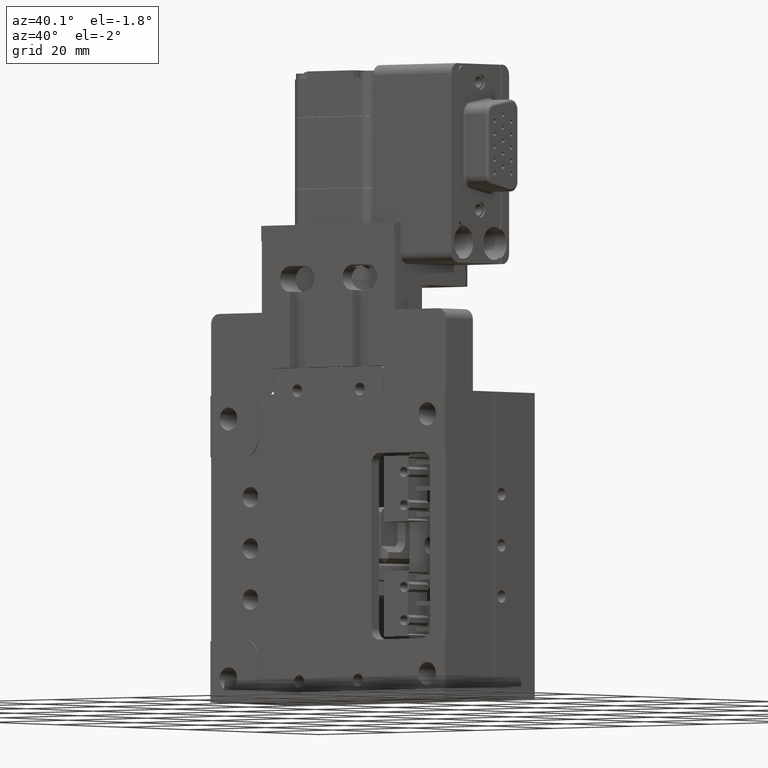
[diagram: clean part render]
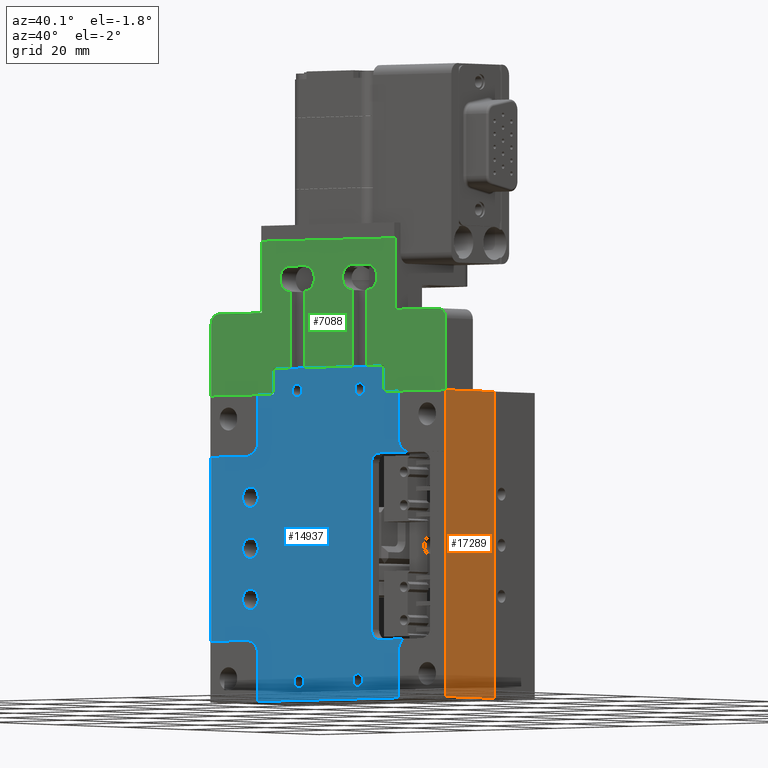
[diagram: same view with three faces highlighted in distinct colors, each labeled with its STEP entity id]
A machine part, auxiliary view with three faces highlighted in distinct colors.
Their STEP definitions:

[orange] entity #17289 — the highlighted planar face has unit normal (1, 0, 0).
#98 = CARTESIAN_POINT ( 'NONE',  ( 27.40828040119247400, -13.09818754598603800, 32.50000000000000000 ) ) ;
#265 = VECTOR ( 'NONE', #16069, 1000.000000000000000 ) ;
#492 = DIRECTION ( 'NONE',  ( 0.0000000000000000000, 0.0000000000000000000, -1.000000000000000000 ) ) ;
#634 = CARTESIAN_POINT ( 'NONE',  ( 27.40828040119247400, -13.09818754598603800, 32.50000000000000000 ) ) ;
#853 = LINE ( 'NONE', #7595, #15488 ) ;
#855 = EDGE_CURVE ( 'NONE', #20815, #10977, #18525, .T. ) ;
#867 = CARTESIAN_POINT ( 'NONE',  ( 27.40828040119247400, 4.072375202491112000, 80.50000000000000000 ) ) ;
#1073 = CARTESIAN_POINT ( 'NONE',  ( 27.40828040119247400, 1.701812454013962300, 92.50000000000000000 ) ) ;
#1280 = AXIS2_PLACEMENT_3D ( 'NONE', #2213, #2134, #3902 ) ;
#1369 = EDGE_CURVE ( 'NONE', #8387, #6875, #7603, .T. ) ;
#1386 = VERTEX_POINT ( 'NONE', #20185 ) ;
#2021 = ORIENTED_EDGE ( 'NONE', *, *, #1369, .F. ) ;
#2134 = DIRECTION ( 'NONE',  ( 1.000000000000000000, 0.0000000000000000000, 0.0000000000000000000 ) ) ;
#2213 = CARTESIAN_POINT ( 'NONE',  ( 27.40828040119247400, -13.09818754598603800, 32.50000000000000000 ) ) ;
#2831 = ORIENTED_EDGE ( 'NONE', *, *, #3958, .F. ) ;
#3101 = VECTOR ( 'NONE', #11660, 1000.000000000000000 ) ;
#3902 = DIRECTION ( 'NONE',  ( 0.0000000000000000000, 0.0000000000000000000, -1.000000000000000000 ) ) ;
#3928 = LINE ( 'NONE', #8036, #3101 ) ;
#3958 = EDGE_CURVE ( 'NONE', #15630, #15066, #853, .T. ) ;
#4899 = ORIENTED_EDGE ( 'NONE', *, *, #855, .F. ) ;
#4976 = CARTESIAN_POINT ( 'NONE',  ( 27.40828040119247400, -13.09818754598602900, 44.50000000000000000 ) ) ;
#5874 = VECTOR ( 'NONE', #20167, 1000.000000000000000 ) ;
#5950 = DIRECTION ( 'NONE',  ( 0.0000000000000000000, -1.000000000000000000, 0.0000000000000000000 ) ) ;
#6217 = DIRECTION ( 'NONE',  ( 0.0000000000000000000, -1.000000000000000000, 0.0000000000000000000 ) ) ;
#6438 = CARTESIAN_POINT ( 'NONE',  ( 27.40828040119247400, -13.09818754598602900, 80.50000000000000000 ) ) ;
#6875 = VERTEX_POINT ( 'NONE', #12829 ) ;
#6903 = ORIENTED_EDGE ( 'NONE', *, *, #18094, .T. ) ;
#6975 = LINE ( 'NONE', #16599, #5874 ) ;
#7595 = CARTESIAN_POINT ( 'NONE',  ( 27.40828040119247400, 1.701812454013962300, 92.50000000000000000 ) ) ;
#7603 = LINE ( 'NONE', #11263, #14519 ) ;
#8036 = CARTESIAN_POINT ( 'NONE',  ( 27.40828040119247400, -13.09818754598603800, 32.50000000000000000 ) ) ;
#8179 = LINE ( 'NONE', #22087, #18168 ) ;
#8200 = ORIENTED_EDGE ( 'NONE', *, *, #15037, .F. ) ;
#8387 = VERTEX_POINT ( 'NONE', #6438 ) ;
#9272 = EDGE_CURVE ( 'NONE', #6875, #15630, #6975, .T. ) ;
#10378 = ORIENTED_EDGE ( 'NONE', *, *, #16028, .T. ) ;
#10977 = VERTEX_POINT ( 'NONE', #4976 ) ;
#11263 = CARTESIAN_POINT ( 'NONE',  ( 27.40828040119247400, -13.09818754598603800, 32.50000000000000000 ) ) ;
#11350 = VECTOR ( 'NONE', #18896, 1000.000000000000000 ) ;
#11484 = DIRECTION ( 'NONE',  ( 0.0000000000000000000, 0.0000000000000000000, 1.000000000000000000 ) ) ;
#11527 = VERTEX_POINT ( 'NONE', #21136 ) ;
#11660 = DIRECTION ( 'NONE',  ( 0.0000000000000000000, 1.000000000000000000, 0.0000000000000000000 ) ) ;
#11718 = FACE_OUTER_BOUND ( 'NONE', #14883, .T. ) ;
#11832 = CARTESIAN_POINT ( 'NONE',  ( 27.40828040119247400, -12.89818754598603000, 37.50000000000000000 ) ) ;
#12714 = LINE ( 'NONE', #11832, #11350 ) ;
#12829 = CARTESIAN_POINT ( 'NONE',  ( 27.40828040119247400, -13.09818754598603800, 92.50000000000000000 ) ) ;
#13591 = CARTESIAN_POINT ( 'NONE',  ( 27.40828040119247400, 1.701812454013962300, 32.50000000000000000 ) ) ;
#14449 = LINE ( 'NONE', #867, #20814 ) ;
#14519 = VECTOR ( 'NONE', #11484, 1000.000000000000000 ) ;
#14883 = EDGE_LOOP ( 'NONE', ( #6903, #2831, #17472, #2021, #8200, #16939, #10378, #4899 ) ) ;
#15037 = EDGE_CURVE ( 'NONE', #1386, #8387, #14449, .T. ) ;
#15066 = VERTEX_POINT ( 'NONE', #13591 ) ;
#15488 = VECTOR ( 'NONE', #492, 1000.000000000000000 ) ;
#15630 = VERTEX_POINT ( 'NONE', #1073 ) ;
#16028 = EDGE_CURVE ( 'NONE', #11527, #10977, #8179, .T. ) ;
#16069 = DIRECTION ( 'NONE',  ( 0.0000000000000000000, 0.0000000000000000000, 1.000000000000000000 ) ) ;
#16599 = CARTESIAN_POINT ( 'NONE',  ( 27.40828040119247400, -13.09818754598603800, 92.50000000000000000 ) ) ;
#16939 = ORIENTED_EDGE ( 'NONE', *, *, #19141, .F. ) ;
#17289 = ADVANCED_FACE ( 'NONE', ( #11718 ), #19771, .T. ) ;
#17472 = ORIENTED_EDGE ( 'NONE', *, *, #9272, .F. ) ;
#18094 = EDGE_CURVE ( 'NONE', #20815, #15066, #3928, .T. ) ;
#18168 = VECTOR ( 'NONE', #6217, 1000.000000000000000 ) ;
#18525 = LINE ( 'NONE', #98, #265 ) ;
#18896 = DIRECTION ( 'NONE',  ( 0.0000000000000000000, 0.0000000000000000000, 1.000000000000000000 ) ) ;
#19141 = EDGE_CURVE ( 'NONE', #11527, #1386, #12714, .T. ) ;
#19771 = PLANE ( 'NONE',  #1280 ) ;
#20167 = DIRECTION ( 'NONE',  ( 0.0000000000000000000, 1.000000000000000000, 0.0000000000000000000 ) ) ;
#20185 = CARTESIAN_POINT ( 'NONE',  ( 27.40828040119247400, -12.89818754598603000, 80.49999999999998600 ) ) ;
#20814 = VECTOR ( 'NONE', #5950, 1000.000000000000000 ) ;
#20815 = VERTEX_POINT ( 'NONE', #634 ) ;
#21136 = CARTESIAN_POINT ( 'NONE',  ( 27.40828040119247400, -12.89818754598603200, 44.50000000000000700 ) ) ;
#22087 = CARTESIAN_POINT ( 'NONE',  ( 27.40828040119247400, 4.072375202491112000, 44.50000000000000000 ) ) ;

[blue] entity #14937 — the highlighted planar face has unit normal (0, 1, 0).
#149 = DIRECTION ( 'NONE',  ( 0.0000000000000000000, 0.0000000000000000000, 1.000000000000000000 ) ) ;
#174 = EDGE_CURVE ( 'NONE', #5190, #7352, #11617, .T. ) ;
#223 = CARTESIAN_POINT ( 'NONE',  ( -22.54171959880752100, -12.89818754598603000, 72.50000000000000000 ) ) ;
#271 = LINE ( 'NONE', #2679, #19636 ) ;
#290 = DIRECTION ( 'NONE',  ( 1.000000000000000000, 0.0000000000000000000, -0.0000000000000000000 ) ) ;
#395 = FACE_BOUND ( 'NONE', #10271, .T. ) ;
#455 = DIRECTION ( 'NONE',  ( 0.0000000000000000000, 0.0000000000000000000, -1.000000000000000000 ) ) ;
#483 = VERTEX_POINT ( 'NONE', #16774 ) ;
#554 = EDGE_LOOP ( 'NONE', ( #14550, #9466, #8753, #20483, #22299, #8929, #6184, #17387, #11371, #21510, #6179, #8842, #18045, #13983, #7570, #4894, #13705, #7097, #19343, #3459, #18063, #4081, #12190, #9069 ) ) ;
#568 = EDGE_CURVE ( 'NONE', #483, #2472, #7193, .T. ) ;
#636 = VERTEX_POINT ( 'NONE', #2946 ) ;
#638 = CIRCLE ( 'NONE', #11482, 2.000000000000001800 ) ;
#714 = DIRECTION ( 'NONE',  ( 0.0000000000000000000, 0.0000000000000000000, -1.000000000000000000 ) ) ;
#774 = CIRCLE ( 'NONE', #18837, 3.000000000000002700 ) ;
#844 = VERTEX_POINT ( 'NONE', #13971 ) ;
#891 = DIRECTION ( 'NONE',  ( 0.0000000000000000000, 0.0000000000000000000, -1.000000000000000000 ) ) ;
#895 = DIRECTION ( 'NONE',  ( 0.0000000000000000000, 0.0000000000000000000, -1.000000000000000000 ) ) ;
#905 = VERTEX_POINT ( 'NONE', #11165 ) ;
#953 = FACE_BOUND ( 'NONE', #1361, .T. ) ;
#1039 = CARTESIAN_POINT ( 'NONE',  ( -22.54171959880752100, -12.89818754598603000, 50.50000000000000000 ) ) ;
#1040 = CARTESIAN_POINT ( 'NONE',  ( 18.40828040119247800, -12.89818754598603200, 41.50000000000000000 ) ) ;
#1143 = CARTESIAN_POINT ( 'NONE',  ( -22.54171959880752100, -12.89818754598603000, 52.50000000000000000 ) ) ;
#1145 = EDGE_CURVE ( 'NONE', #10546, #8246, #5503, .T. ) ;
#1148 = DIRECTION ( 'NONE',  ( -0.0000000000000000000, 1.000000000000000000, -0.0000000000000000000 ) ) ;
#1232 = LINE ( 'NONE', #16188, #10875 ) ;
#1265 = VECTOR ( 'NONE', #12722, 1000.000000000000000 ) ;
#1327 = LINE ( 'NONE', #1836, #8790 ) ;
#1361 = EDGE_LOOP ( 'NONE', ( #16026, #3379 ) ) ;
#1667 = EDGE_CURVE ( 'NONE', #19701, #4602, #19489, .T. ) ;
#1799 = DIRECTION ( 'NONE',  ( 0.0000000000000000000, 0.0000000000000000000, -1.000000000000000000 ) ) ;
#1811 = EDGE_LOOP ( 'NONE', ( #17483, #3621 ) ) ;
#1836 = CARTESIAN_POINT ( 'NONE',  ( -32.59171959880752200, -12.89818754598603200, 44.50000000000000000 ) ) ;
#1838 = CARTESIAN_POINT ( 'NONE',  ( -10.59171959880752000, -12.89818754598603000, 94.34999999999954000 ) ) ;
#1841 = ORIENTED_EDGE ( 'NONE', *, *, #13355, .T. ) ;
#1842 = CARTESIAN_POINT ( 'NONE',  ( -32.59171959880752200, -12.89818754598603200, 80.50000000000000000 ) ) ;
#1861 = DIRECTION ( 'NONE',  ( -0.0000000000000000000, -1.000000000000000000, -0.0000000000000000000 ) ) ;
#2010 = CARTESIAN_POINT ( 'NONE',  ( 11.40828040119246700, -12.89818754598603000, 62.50000000000000000 ) ) ;
#2287 = ORIENTED_EDGE ( 'NONE', *, *, #10107, .T. ) ;
#2312 = EDGE_CURVE ( 'NONE', #14892, #11290, #4804, .T. ) ;
#2472 = VERTEX_POINT ( 'NONE', #6446 ) ;
#2617 = CARTESIAN_POINT ( 'NONE',  ( -16.59171959880752200, -12.89818754598603200, 96.99999999999997200 ) ) ;
#2679 = CARTESIAN_POINT ( 'NONE',  ( -16.74171959880752100, -12.89818754598603000, 97.50000000000000000 ) ) ;
#2705 = LINE ( 'NONE', #18684, #6296 ) ;
#2714 = EDGE_CURVE ( 'NONE', #6970, #21377, #10848, .T. ) ;
#2869 = VERTEX_POINT ( 'NONE', #3500 ) ;
#2902 = DIRECTION ( 'NONE',  ( 0.0000000000000000000, 0.0000000000000000000, -1.000000000000000000 ) ) ;
#2946 = CARTESIAN_POINT ( 'NONE',  ( 10.40828040119248100, -12.89818754598603000, 80.50000000000000000 ) ) ;
#2974 = AXIS2_PLACEMENT_3D ( 'NONE', #6893, #8812, #21062 ) ;
#3271 = DIRECTION ( 'NONE',  ( 1.000000000000000000, -0.0000000000000000000, 0.0000000000000000000 ) ) ;
#3297 = CARTESIAN_POINT ( 'NONE',  ( -24.59171959880752200, -12.89818754598603000, 32.50000000000000000 ) ) ;
#3379 = ORIENTED_EDGE ( 'NONE', *, *, #10962, .F. ) ;
#3398 = DIRECTION ( 'NONE',  ( 0.0000000000000000000, 1.000000000000000000, 0.0000000000000000000 ) ) ;
#3459 = ORIENTED_EDGE ( 'NONE', *, *, #568, .T. ) ;
#3485 = CARTESIAN_POINT ( 'NONE',  ( -10.59171959880752000, -12.89818754598603000, 93.09999999999954000 ) ) ;
#3500 = CARTESIAN_POINT ( 'NONE',  ( 5.408280401192479700, -12.89818754598603000, 94.34999999999954000 ) ) ;
#3621 = ORIENTED_EDGE ( 'NONE', *, *, #16273, .T. ) ;
#3748 = VERTEX_POINT ( 'NONE', #6625 ) ;
#3767 = DIRECTION ( 'NONE',  ( 2.276041012469858000E-016, -0.0000000000000000000, 1.000000000000000000 ) ) ;
#3821 = EDGE_CURVE ( 'NONE', #6155, #10354, #16073, .T. ) ;
#4081 = ORIENTED_EDGE ( 'NONE', *, *, #1145, .F. ) ;
#4083 = CARTESIAN_POINT ( 'NONE',  ( -16.59171959880752200, -12.89818754598603000, 62.50000000000000000 ) ) ;
#4102 = DIRECTION ( 'NONE',  ( 0.0000000000000000000, 1.000000000000000000, 0.0000000000000000000 ) ) ;
#4124 = DIRECTION ( 'NONE',  ( -0.7071067811865474600, 0.0000000000000000000, 0.7071067811865474600 ) ) ;
#4126 = ORIENTED_EDGE ( 'NONE', *, *, #2312, .F. ) ;
#4296 = VECTOR ( 'NONE', #4124, 1000.000000000000100 ) ;
#4450 = DIRECTION ( 'NONE',  ( -0.0000000000000000000, -1.000000000000000000, -0.0000000000000000000 ) ) ;
#4460 = VECTOR ( 'NONE', #13340, 1000.000000000000100 ) ;
#4495 = CARTESIAN_POINT ( 'NONE',  ( -22.54171959880752100, -12.89818754598603000, 64.50000000000000000 ) ) ;
#4602 = VERTEX_POINT ( 'NONE', #15342 ) ;
#4804 = CIRCLE ( 'NONE', #19034, 1.999999999999994900 ) ;
#4822 = FACE_BOUND ( 'NONE', #14340, .T. ) ;
#4827 = DIRECTION ( 'NONE',  ( -0.0000000000000000000, -1.000000000000000000, -0.0000000000000000000 ) ) ;
#4839 = CARTESIAN_POINT ( 'NONE',  ( -23.59171959880754300, -12.89818754598603200, 44.50000000000000000 ) ) ;
#4855 = AXIS2_PLACEMENT_3D ( 'NONE', #6679, #4827, #2902 ) ;
#4872 = CIRCLE ( 'NONE', #19426, 2.000000000000001800 ) ;
#4894 = ORIENTED_EDGE ( 'NONE', *, *, #13031, .F. ) ;
#4944 = VECTOR ( 'NONE', #14894, 1000.000000000000000 ) ;
#5082 = FACE_BOUND ( 'NONE', #15555, .T. ) ;
#5090 = DIRECTION ( 'NONE',  ( -0.0000000000000000000, 1.000000000000000000, -0.0000000000000000000 ) ) ;
#5190 = VERTEX_POINT ( 'NONE', #10590 ) ;
#5358 = DIRECTION ( 'NONE',  ( 3.854941057726246500E-016, 0.0000000000000000000, -1.000000000000000000 ) ) ;
#5503 = LINE ( 'NONE', #21071, #20730 ) ;
#5527 = EDGE_CURVE ( 'NONE', #16115, #6639, #16551, .T. ) ;
#5579 = CARTESIAN_POINT ( 'NONE',  ( -2.591719598807523900, -12.89818754598603000, 62.50000000000000000 ) ) ;
#5703 = CIRCLE ( 'NONE', #15452, 1.250000000000001100 ) ;
#5859 = AXIS2_PLACEMENT_3D ( 'NONE', #3485, #17404, #1799 ) ;
#5948 = AXIS2_PLACEMENT_3D ( 'NONE', #15678, #15456, #8661 ) ;
#5972 = CARTESIAN_POINT ( 'NONE',  ( -22.54171959880752100, -12.89818754598603000, 52.50000000000000000 ) ) ;
#5974 = CARTESIAN_POINT ( 'NONE',  ( -10.09171959880770300, -12.89818754598603000, 36.20000000000015200 ) ) ;
#6137 = CARTESIAN_POINT ( 'NONE',  ( -10.59171959880752000, -12.89818754598603000, 91.84999999999954000 ) ) ;
#6155 = VERTEX_POINT ( 'NONE', #8848 ) ;
#6179 = ORIENTED_EDGE ( 'NONE', *, *, #174, .T. ) ;
#6184 = ORIENTED_EDGE ( 'NONE', *, *, #17163, .F. ) ;
#6198 = CARTESIAN_POINT ( 'NONE',  ( -20.59171959880752200, -12.89818754598603000, 62.50000000000000000 ) ) ;
#6213 = DIRECTION ( 'NONE',  ( 0.0000000000000000000, 0.0000000000000000000, -1.000000000000000000 ) ) ;
#6287 = DIRECTION ( 'NONE',  ( -0.0000000000000000000, 1.000000000000000000, -0.0000000000000000000 ) ) ;
#6288 = CARTESIAN_POINT ( 'NONE',  ( 5.408280401192479700, -12.89818754598603000, 93.09999999999954000 ) ) ;
#6296 = VECTOR ( 'NONE', #9843, 1000.000000000000000 ) ;
#6307 = VERTEX_POINT ( 'NONE', #11381 ) ;
#6353 = CIRCLE ( 'NONE', #17453, 1.250000000000001100 ) ;
#6384 = CIRCLE ( 'NONE', #17138, 1.250000000000001100 ) ;
#6446 = CARTESIAN_POINT ( 'NONE',  ( -20.59171959880752200, -12.89818754598603000, 32.50000000000000000 ) ) ;
#6555 = VERTEX_POINT ( 'NONE', #8131 ) ;
#6625 = CARTESIAN_POINT ( 'NONE',  ( 5.408280401192479700, -12.89818754598603000, 91.84999999999954000 ) ) ;
#6635 = VERTEX_POINT ( 'NONE', #15700 ) ;
#6639 = VERTEX_POINT ( 'NONE', #6976 ) ;
#6679 = CARTESIAN_POINT ( 'NONE',  ( -22.54171959880752100, -12.89818754598603000, 62.50000000000000000 ) ) ;
#6774 = DIRECTION ( 'NONE',  ( -1.734723475976807100E-016, 0.0000000000000000000, 1.000000000000000000 ) ) ;
#6893 = CARTESIAN_POINT ( 'NONE',  ( -23.59171959880752200, -12.89818754598603200, 41.50000000000000000 ) ) ;
#6970 = VERTEX_POINT ( 'NONE', #17396 ) ;
#6976 = CARTESIAN_POINT ( 'NONE',  ( 10.40828040119248500, -12.89818754598603000, 44.00000000000000000 ) ) ;
#7017 = CARTESIAN_POINT ( 'NONE',  ( 15.40828040119247800, -12.89818754598603200, 41.49999999999997900 ) ) ;
#7097 = ORIENTED_EDGE ( 'NONE', *, *, #12721, .F. ) ;
#7193 = LINE ( 'NONE', #6198, #19653 ) ;
#7238 = CARTESIAN_POINT ( 'NONE',  ( -22.54171959880752100, -12.89818754598603000, 62.50000000000000000 ) ) ;
#7352 = VERTEX_POINT ( 'NONE', #22208 ) ;
#7446 = CIRCLE ( 'NONE', #7840, 2.000000000000001800 ) ;
#7480 = DIRECTION ( 'NONE',  ( 1.000000000000000000, 0.0000000000000000000, -0.0000000000000000000 ) ) ;
#7525 = EDGE_CURVE ( 'NONE', #2472, #8246, #20389, .T. ) ;
#7568 = CARTESIAN_POINT ( 'NONE',  ( -10.59171959880752000, -12.89818754598603000, 93.09999999999954000 ) ) ;
#7570 = ORIENTED_EDGE ( 'NONE', *, *, #20270, .F. ) ;
#7606 = CARTESIAN_POINT ( 'NONE',  ( -23.59171959880754300, -12.89818754598603200, 80.50000000000000000 ) ) ;
#7627 = VECTOR ( 'NONE', #6774, 1000.000000000000000 ) ;
#7755 = AXIS2_PLACEMENT_3D ( 'NONE', #5579, #4102, #10972 ) ;
#7840 = AXIS2_PLACEMENT_3D ( 'NONE', #12375, #19434, #15711 ) ;
#7985 = CARTESIAN_POINT ( 'NONE',  ( 16.74996800601477500, -12.89818754598603200, 44.00000000000000000 ) ) ;
#8076 = DIRECTION ( 'NONE',  ( 1.000000000000000000, 0.0000000000000000000, 0.0000000000000000000 ) ) ;
#8131 = CARTESIAN_POINT ( 'NONE',  ( 4.908280401192295800, -12.89818754598603000, 34.94999999999999600 ) ) ;
#8151 = DIRECTION ( 'NONE',  ( 0.0000000000000000000, 0.0000000000000000000, -1.000000000000000000 ) ) ;
#8226 = DIRECTION ( 'NONE',  ( -0.0000000000000000000, -1.000000000000000000, -0.0000000000000000000 ) ) ;
#8246 = VERTEX_POINT ( 'NONE', #13223 ) ;
#8661 = DIRECTION ( 'NONE',  ( 0.0000000000000000000, 0.0000000000000000000, 1.000000000000000000 ) ) ;
#8732 = CARTESIAN_POINT ( 'NONE',  ( 10.40828040119248100, -12.89818754598603000, 78.50000000000000000 ) ) ;
#8753 = ORIENTED_EDGE ( 'NONE', *, *, #22753, .T. ) ;
#8790 = VECTOR ( 'NONE', #21324, 1000.000000000000000 ) ;
#8806 = CIRCLE ( 'NONE', #2974, 2.999999999999995600 ) ;
#8812 = DIRECTION ( 'NONE',  ( -0.0000000000000000000, -1.000000000000000000, -0.0000000000000000000 ) ) ;
#8842 = ORIENTED_EDGE ( 'NONE', *, *, #15395, .T. ) ;
#8848 = CARTESIAN_POINT ( 'NONE',  ( -22.54171959880752100, -12.89818754598603000, 60.50000000000000000 ) ) ;
#8882 = DIRECTION ( 'NONE',  ( 0.0000000000000000000, 0.0000000000000000000, 1.000000000000000000 ) ) ;
#8929 = ORIENTED_EDGE ( 'NONE', *, *, #2714, .F. ) ;
#8974 = VERTEX_POINT ( 'NONE', #22652 ) ;
#9069 = ORIENTED_EDGE ( 'NONE', *, *, #5527, .T. ) ;
#9085 = AXIS2_PLACEMENT_3D ( 'NONE', #11890, #5090, #17460 ) ;
#9180 = DIRECTION ( 'NONE',  ( 0.0000000000000000000, 0.0000000000000000000, -1.000000000000000000 ) ) ;
#9466 = ORIENTED_EDGE ( 'NONE', *, *, #13944, .T. ) ;
#9510 = DIRECTION ( 'NONE',  ( -0.0000000000000000000, 1.000000000000000000, -0.0000000000000000000 ) ) ;
#9744 = EDGE_CURVE ( 'NONE', #11290, #14892, #16066, .T. ) ;
#9843 = DIRECTION ( 'NONE',  ( 0.0000000000000000000, 0.0000000000000000000, 1.000000000000000000 ) ) ;
#9942 = VERTEX_POINT ( 'NONE', #12046 ) ;
#10026 = CARTESIAN_POINT ( 'NONE',  ( -2.591719598807522600, -12.89818754598603000, 44.00000000000000000 ) ) ;
#10107 = EDGE_CURVE ( 'NONE', #905, #9942, #6384, .T. ) ;
#10271 = EDGE_LOOP ( 'NONE', ( #1841, #12916 ) ) ;
#10354 = VERTEX_POINT ( 'NONE', #4495 ) ;
#10433 = DIRECTION ( 'NONE',  ( -3.854941057726246500E-016, 0.0000000000000000000, -1.000000000000000000 ) ) ;
#10546 = VERTEX_POINT ( 'NONE', #7017 ) ;
#10561 = ORIENTED_EDGE ( 'NONE', *, *, #21721, .T. ) ;
#10567 = AXIS2_PLACEMENT_3D ( 'NONE', #1040, #4450, #11449 ) ;
#10576 = CARTESIAN_POINT ( 'NONE',  ( -10.09171959880770300, -12.89818754598603000, 36.20000000000015200 ) ) ;
#10590 = CARTESIAN_POINT ( 'NONE',  ( -16.09171959880750800, -12.89818754598603000, 97.50000000000000000 ) ) ;
#10675 = VERTEX_POINT ( 'NONE', #1838 ) ;
#10848 = LINE ( 'NONE', #19578, #18350 ) ;
#10875 = VECTOR ( 'NONE', #290, 1000.000000000000000 ) ;
#10892 = EDGE_CURVE ( 'NONE', #5190, #20208, #271, .T. ) ;
#10949 = ORIENTED_EDGE ( 'NONE', *, *, #18339, .F. ) ;
#10954 = LINE ( 'NONE', #16267, #14554 ) ;
#10962 = EDGE_CURVE ( 'NONE', #10354, #6155, #16591, .T. ) ;
#10972 = DIRECTION ( 'NONE',  ( 0.0000000000000000000, -0.0000000000000000000, 1.000000000000000000 ) ) ;
#11106 = CARTESIAN_POINT ( 'NONE',  ( 11.40828040119247400, -12.89818754598603200, 92.50000000000000000 ) ) ;
#11108 = EDGE_CURVE ( 'NONE', #844, #12927, #7446, .T. ) ;
#11129 = AXIS2_PLACEMENT_3D ( 'NONE', #5972, #13221, #891 ) ;
#11165 = CARTESIAN_POINT ( 'NONE',  ( -10.09171959880770300, -12.89818754598603000, 34.95000000000014500 ) ) ;
#11290 = VERTEX_POINT ( 'NONE', #1039 ) ;
#11300 = CARTESIAN_POINT ( 'NONE',  ( 4.908280401192295800, -12.89818754598603000, 37.44999999999999600 ) ) ;
#11369 = CARTESIAN_POINT ( 'NONE',  ( 11.40828040119247600, -12.89818754598603200, 96.99999999999997200 ) ) ;
#11371 = ORIENTED_EDGE ( 'NONE', *, *, #14250, .T. ) ;
#11381 = CARTESIAN_POINT ( 'NONE',  ( -32.59171959880752200, -12.89818754598603200, 44.50000000000000000 ) ) ;
#11449 = DIRECTION ( 'NONE',  ( 1.156482317317873100E-015, 0.0000000000000000000, 1.000000000000000000 ) ) ;
#11461 = CARTESIAN_POINT ( 'NONE',  ( -22.54171959880752100, -12.89818754598603000, 74.50000000000000000 ) ) ;
#11482 = AXIS2_PLACEMENT_3D ( 'NONE', #223, #18169, #455 ) ;
#11534 = EDGE_CURVE ( 'NONE', #483, #15600, #8806, .T. ) ;
#11617 = LINE ( 'NONE', #2617, #4460 ) ;
#11890 = CARTESIAN_POINT ( 'NONE',  ( 4.908280401192295800, -12.89818754598603000, 36.19999999999999600 ) ) ;
#11938 = CARTESIAN_POINT ( 'NONE',  ( 18.40828040119249900, -12.89818754598603000, 80.50000000000000000 ) ) ;
#12046 = CARTESIAN_POINT ( 'NONE',  ( -10.09171959880770300, -12.89818754598603000, 37.45000000000015200 ) ) ;
#12190 = ORIENTED_EDGE ( 'NONE', *, *, #16015, .F. ) ;
#12191 = EDGE_CURVE ( 'NONE', #21377, #15586, #774, .T. ) ;
#12335 = EDGE_LOOP ( 'NONE', ( #19570, #4126 ) ) ;
#12375 = CARTESIAN_POINT ( 'NONE',  ( -22.54171959880752100, -12.89818754598603000, 72.50000000000000000 ) ) ;
#12589 = AXIS2_PLACEMENT_3D ( 'NONE', #18500, #9510, #714 ) ;
#12721 = EDGE_CURVE ( 'NONE', #15600, #6307, #1327, .T. ) ;
#12722 = DIRECTION ( 'NONE',  ( -0.0000000000000000000, 0.0000000000000000000, -1.000000000000000000 ) ) ;
#12766 = DIRECTION ( 'NONE',  ( 0.0000000000000000000, 0.0000000000000000000, 1.000000000000000000 ) ) ;
#12866 = CARTESIAN_POINT ( 'NONE',  ( -24.59171959880752200, -12.89818754598603000, 92.50000000000000000 ) ) ;
#12893 = EDGE_CURVE ( 'NONE', #6635, #8974, #2705, .T. ) ;
#12916 = ORIENTED_EDGE ( 'NONE', *, *, #15108, .T. ) ;
#12927 = VERTEX_POINT ( 'NONE', #11461 ) ;
#13031 = EDGE_CURVE ( 'NONE', #19548, #20285, #19029, .T. ) ;
#13104 = FACE_BOUND ( 'NONE', #1811, .T. ) ;
#13217 = CIRCLE ( 'NONE', #9085, 1.250000000000001100 ) ;
#13221 = DIRECTION ( 'NONE',  ( -0.0000000000000000000, -1.000000000000000000, -0.0000000000000000000 ) ) ;
#13223 = CARTESIAN_POINT ( 'NONE',  ( 15.40828040119245800, -12.89818754598603000, 32.50000000000000000 ) ) ;
#13287 = DIRECTION ( 'NONE',  ( -0.0000000000000000000, 0.0000000000000000000, -1.000000000000000000 ) ) ;
#13307 = DIRECTION ( 'NONE',  ( -0.0000000000000000000, -0.0000000000000000000, -1.000000000000000000 ) ) ;
#13340 = DIRECTION ( 'NONE',  ( -0.7071067811865474600, 0.0000000000000000000, -0.7071067811865474600 ) ) ;
#13355 = EDGE_CURVE ( 'NONE', #14367, #6555, #15393, .T. ) ;
#13419 = CIRCLE ( 'NONE', #5859, 1.250000000000001100 ) ;
#13512 = ORIENTED_EDGE ( 'NONE', *, *, #11108, .F. ) ;
#13570 = EDGE_CURVE ( 'NONE', #6639, #16191, #18985, .T. ) ;
#13633 = CARTESIAN_POINT ( 'NONE',  ( 5.408280401192479700, -12.89818754598603000, 93.09999999999954000 ) ) ;
#13705 = ORIENTED_EDGE ( 'NONE', *, *, #21682, .T. ) ;
#13850 = CARTESIAN_POINT ( 'NONE',  ( -32.59171959880752200, -12.89818754598603200, 80.50000000000000000 ) ) ;
#13906 = CARTESIAN_POINT ( 'NONE',  ( -16.59171959880752200, -12.89818754598603200, 92.50000000000000000 ) ) ;
#13944 = EDGE_CURVE ( 'NONE', #16191, #18675, #15350, .T. ) ;
#13971 = CARTESIAN_POINT ( 'NONE',  ( -22.54171959880752100, -12.89818754598603000, 70.50000000000000000 ) ) ;
#13983 = ORIENTED_EDGE ( 'NONE', *, *, #12893, .F. ) ;
#14083 = LINE ( 'NONE', #16604, #4944 ) ;
#14250 = EDGE_CURVE ( 'NONE', #4602, #20208, #18687, .T. ) ;
#14340 = EDGE_LOOP ( 'NONE', ( #13512, #10949 ) ) ;
#14367 = VERTEX_POINT ( 'NONE', #11300 ) ;
#14384 = LINE ( 'NONE', #12866, #21314 ) ;
#14388 = DIRECTION ( 'NONE',  ( -0.0000000000000000000, 1.000000000000000000, -0.0000000000000000000 ) ) ;
#14405 = CIRCLE ( 'NONE', #16844, 1.250000000000001100 ) ;
#14550 = ORIENTED_EDGE ( 'NONE', *, *, #13570, .T. ) ;
#14554 = VECTOR ( 'NONE', #13307, 1000.000000000000000 ) ;
#14556 = CARTESIAN_POINT ( 'NONE',  ( 10.90828040119246200, -12.89818754598603000, 97.50000000000000000 ) ) ;
#14732 = DIRECTION ( 'NONE',  ( 0.0000000000000000000, 0.0000000000000000000, -1.000000000000000000 ) ) ;
#14776 = AXIS2_PLACEMENT_3D ( 'NONE', #14860, #19997, #12766 ) ;
#14860 = CARTESIAN_POINT ( 'NONE',  ( -23.59171959880752200, -12.89818754598603200, 83.49999999999998600 ) ) ;
#14892 = VERTEX_POINT ( 'NONE', #16317 ) ;
#14894 = DIRECTION ( 'NONE',  ( 1.000000000000000000, 0.0000000000000000000, -3.154042683594196100E-016 ) ) ;
#14937 = ADVANCED_FACE ( 'NONE', ( #953, #16705, #4822, #13104, #5082, #17530, #395, #18656 ), #21586, .F. ) ;
#15102 = CIRCLE ( 'NONE', #10567, 2.999999999999995600 ) ;
#15108 = EDGE_CURVE ( 'NONE', #6555, #14367, #13217, .T. ) ;
#15177 = CIRCLE ( 'NONE', #14776, 3.000000000000002700 ) ;
#15301 = EDGE_CURVE ( 'NONE', #10675, #20314, #5703, .T. ) ;
#15342 = CARTESIAN_POINT ( 'NONE',  ( 11.40828040119247600, -12.89818754598603000, 96.99999999999997200 ) ) ;
#15350 = LINE ( 'NONE', #18644, #7627 ) ;
#15393 = CIRCLE ( 'NONE', #12589, 1.250000000000001100 ) ;
#15395 = EDGE_CURVE ( 'NONE', #7352, #20566, #20385, .T. ) ;
#15452 = AXIS2_PLACEMENT_3D ( 'NONE', #7568, #21716, #9180 ) ;
#15456 = DIRECTION ( 'NONE',  ( 0.0000000000000000000, 1.000000000000000000, 0.0000000000000000000 ) ) ;
#15469 = CARTESIAN_POINT ( 'NONE',  ( 8.408280401192486800, -12.89818754598603000, 46.00000000000000000 ) ) ;
#15555 = EDGE_LOOP ( 'NONE', ( #17110, #10561 ) ) ;
#15586 = VERTEX_POINT ( 'NONE', #11938 ) ;
#15600 = VERTEX_POINT ( 'NONE', #4839 ) ;
#15636 = CARTESIAN_POINT ( 'NONE',  ( 8.408280401192483200, -12.89818754598603000, 78.50000000000000000 ) ) ;
#15678 = CARTESIAN_POINT ( 'NONE',  ( 10.40828040119248500, -12.89818754598603000, 46.00000000000000000 ) ) ;
#15700 = CARTESIAN_POINT ( 'NONE',  ( -20.59171959880752200, -12.89818754598603000, 83.50000000000001400 ) ) ;
#15711 = DIRECTION ( 'NONE',  ( 0.0000000000000000000, 0.0000000000000000000, -1.000000000000000000 ) ) ;
#15767 = DIRECTION ( 'NONE',  ( 0.0000000000000000000, 0.0000000000000000000, -1.000000000000000000 ) ) ;
#16015 = EDGE_CURVE ( 'NONE', #16115, #10546, #15102, .T. ) ;
#16026 = ORIENTED_EDGE ( 'NONE', *, *, #3821, .F. ) ;
#16066 = CIRCLE ( 'NONE', #11129, 1.999999999999994900 ) ;
#16073 = CIRCLE ( 'NONE', #19965, 2.000000000000001800 ) ;
#16115 = VERTEX_POINT ( 'NONE', #7985 ) ;
#16188 = CARTESIAN_POINT ( 'NONE',  ( -24.59171959880752200, -12.89818754598603000, 92.50000000000000000 ) ) ;
#16191 = VERTEX_POINT ( 'NONE', #15469 ) ;
#16267 = CARTESIAN_POINT ( 'NONE',  ( -32.59171959880751500, -12.89818754598603000, 37.50000000000000000 ) ) ;
#16273 = EDGE_CURVE ( 'NONE', #20314, #10675, #13419, .T. ) ;
#16317 = CARTESIAN_POINT ( 'NONE',  ( -22.54171959880752100, -12.89818754598603000, 54.49999999999999300 ) ) ;
#16492 = CIRCLE ( 'NONE', #18529, 1.250000000000001100 ) ;
#16551 = LINE ( 'NONE', #10026, #17078 ) ;
#16591 = CIRCLE ( 'NONE', #4855, 2.000000000000001800 ) ;
#16604 = CARTESIAN_POINT ( 'NONE',  ( -2.591719598807518100, -12.89818754598603000, 80.50000000000000000 ) ) ;
#16705 = FACE_BOUND ( 'NONE', #12335, .T. ) ;
#16774 = CARTESIAN_POINT ( 'NONE',  ( -20.59171959880752200, -12.89818754598603200, 41.49999999999997900 ) ) ;
#16844 = AXIS2_PLACEMENT_3D ( 'NONE', #5974, #6287, #6213 ) ;
#16886 = DIRECTION ( 'NONE',  ( 0.0000000000000000000, 0.0000000000000000000, -1.000000000000000000 ) ) ;
#16933 = ORIENTED_EDGE ( 'NONE', *, *, #19078, .T. ) ;
#17078 = VECTOR ( 'NONE', #22441, 1000.000000000000000 ) ;
#17110 = ORIENTED_EDGE ( 'NONE', *, *, #19882, .T. ) ;
#17138 = AXIS2_PLACEMENT_3D ( 'NONE', #10576, #14388, #15767 ) ;
#17163 = EDGE_CURVE ( 'NONE', #19701, #6970, #1232, .T. ) ;
#17387 = ORIENTED_EDGE ( 'NONE', *, *, #1667, .T. ) ;
#17396 = CARTESIAN_POINT ( 'NONE',  ( 15.40828040119245800, -12.89818754598603000, 92.50000000000000000 ) ) ;
#17404 = DIRECTION ( 'NONE',  ( -0.0000000000000000000, 1.000000000000000000, -0.0000000000000000000 ) ) ;
#17453 = AXIS2_PLACEMENT_3D ( 'NONE', #13633, #1148, #8151 ) ;
#17460 = DIRECTION ( 'NONE',  ( 0.0000000000000000000, 0.0000000000000000000, -1.000000000000000000 ) ) ;
#17483 = ORIENTED_EDGE ( 'NONE', *, *, #15301, .T. ) ;
#17530 = FACE_OUTER_BOUND ( 'NONE', #554, .T. ) ;
#17955 = CARTESIAN_POINT ( 'NONE',  ( 18.40828040119247800, -12.89818754598603200, 83.49999999999998600 ) ) ;
#18045 = ORIENTED_EDGE ( 'NONE', *, *, #19452, .F. ) ;
#18063 = ORIENTED_EDGE ( 'NONE', *, *, #7525, .T. ) ;
#18154 = EDGE_LOOP ( 'NONE', ( #16933, #2287 ) ) ;
#18169 = DIRECTION ( 'NONE',  ( -0.0000000000000000000, -1.000000000000000000, -0.0000000000000000000 ) ) ;
#18339 = EDGE_CURVE ( 'NONE', #12927, #844, #638, .T. ) ;
#18350 = VECTOR ( 'NONE', #5358, 1000.000000000000000 ) ;
#18500 = CARTESIAN_POINT ( 'NONE',  ( 4.908280401192295800, -12.89818754598603000, 36.19999999999999600 ) ) ;
#18529 = AXIS2_PLACEMENT_3D ( 'NONE', #6288, #20459, #895 ) ;
#18644 = CARTESIAN_POINT ( 'NONE',  ( 8.408280401192488500, -12.89818754598603000, 62.50000000000000000 ) ) ;
#18656 = FACE_BOUND ( 'NONE', #18154, .T. ) ;
#18675 = VERTEX_POINT ( 'NONE', #15636 ) ;
#18684 = CARTESIAN_POINT ( 'NONE',  ( -20.59171959880752200, -12.89818754598603200, 92.50000000000000000 ) ) ;
#18687 = LINE ( 'NONE', #11369, #4296 ) ;
#18837 = AXIS2_PLACEMENT_3D ( 'NONE', #17955, #1861, #8882 ) ;
#18946 = VECTOR ( 'NONE', #3767, 1000.000000000000000 ) ;
#18985 = CIRCLE ( 'NONE', #5948, 2.000000000000001800 ) ;
#19029 = LINE ( 'NONE', #13850, #22893 ) ;
#19034 = AXIS2_PLACEMENT_3D ( 'NONE', #1143, #8226, #16886 ) ;
#19078 = EDGE_CURVE ( 'NONE', #9942, #905, #14405, .T. ) ;
#19221 = DIRECTION ( 'NONE',  ( 1.000000000000000000, 0.0000000000000000000, -0.0000000000000000000 ) ) ;
#19343 = ORIENTED_EDGE ( 'NONE', *, *, #11534, .F. ) ;
#19426 = AXIS2_PLACEMENT_3D ( 'NONE', #8732, #3398, #149 ) ;
#19434 = DIRECTION ( 'NONE',  ( -0.0000000000000000000, -1.000000000000000000, -0.0000000000000000000 ) ) ;
#19452 = EDGE_CURVE ( 'NONE', #8974, #20566, #14384, .T. ) ;
#19489 = LINE ( 'NONE', #2010, #18946 ) ;
#19546 = VECTOR ( 'NONE', #19221, 1000.000000000000000 ) ;
#19548 = VERTEX_POINT ( 'NONE', #1842 ) ;
#19570 = ORIENTED_EDGE ( 'NONE', *, *, #9744, .F. ) ;
#19578 = CARTESIAN_POINT ( 'NONE',  ( 15.40828040119247400, -12.89818754598603200, 92.50000000000000000 ) ) ;
#19620 = DIRECTION ( 'NONE',  ( -0.0000000000000000000, -1.000000000000000000, -0.0000000000000000000 ) ) ;
#19636 = VECTOR ( 'NONE', #8076, 1000.000000000000000 ) ;
#19653 = VECTOR ( 'NONE', #13287, 1000.000000000000000 ) ;
#19701 = VERTEX_POINT ( 'NONE', #11106 ) ;
#19846 = EDGE_CURVE ( 'NONE', #636, #15586, #14083, .T. ) ;
#19882 = EDGE_CURVE ( 'NONE', #2869, #3748, #6353, .T. ) ;
#19965 = AXIS2_PLACEMENT_3D ( 'NONE', #7238, #19620, #14732 ) ;
#19997 = DIRECTION ( 'NONE',  ( -0.0000000000000000000, -1.000000000000000000, -0.0000000000000000000 ) ) ;
#20208 = VERTEX_POINT ( 'NONE', #14556 ) ;
#20270 = EDGE_CURVE ( 'NONE', #20285, #6635, #15177, .T. ) ;
#20285 = VERTEX_POINT ( 'NONE', #7606 ) ;
#20314 = VERTEX_POINT ( 'NONE', #6137 ) ;
#20385 = LINE ( 'NONE', #4083, #1265 ) ;
#20389 = LINE ( 'NONE', #3297, #19546 ) ;
#20459 = DIRECTION ( 'NONE',  ( -0.0000000000000000000, 1.000000000000000000, -0.0000000000000000000 ) ) ;
#20483 = ORIENTED_EDGE ( 'NONE', *, *, #19846, .T. ) ;
#20566 = VERTEX_POINT ( 'NONE', #13906 ) ;
#20704 = CARTESIAN_POINT ( 'NONE',  ( 15.40828040119247800, -12.89818754598603200, 83.50000000000001400 ) ) ;
#20730 = VECTOR ( 'NONE', #10433, 1000.000000000000000 ) ;
#21062 = DIRECTION ( 'NONE',  ( 0.0000000000000000000, 0.0000000000000000000, 1.000000000000000000 ) ) ;
#21071 = CARTESIAN_POINT ( 'NONE',  ( 15.40828040119247400, -12.89818754598603200, 32.50000000000000000 ) ) ;
#21314 = VECTOR ( 'NONE', #7480, 1000.000000000000000 ) ;
#21324 = DIRECTION ( 'NONE',  ( -1.000000000000000000, 0.0000000000000000000, -0.0000000000000000000 ) ) ;
#21377 = VERTEX_POINT ( 'NONE', #20704 ) ;
#21510 = ORIENTED_EDGE ( 'NONE', *, *, #10892, .F. ) ;
#21586 = PLANE ( 'NONE',  #7755 ) ;
#21682 = EDGE_CURVE ( 'NONE', #19548, #6307, #10954, .T. ) ;
#21716 = DIRECTION ( 'NONE',  ( -0.0000000000000000000, 1.000000000000000000, -0.0000000000000000000 ) ) ;
#21721 = EDGE_CURVE ( 'NONE', #3748, #2869, #16492, .T. ) ;
#22208 = CARTESIAN_POINT ( 'NONE',  ( -16.59171959880752200, -12.89818754598603000, 96.99999999999997200 ) ) ;
#22299 = ORIENTED_EDGE ( 'NONE', *, *, #12191, .F. ) ;
#22441 = DIRECTION ( 'NONE',  ( -1.000000000000000000, 0.0000000000000000000, -7.885106708985492700E-017 ) ) ;
#22652 = CARTESIAN_POINT ( 'NONE',  ( -20.59171959880752200, -12.89818754598603000, 92.50000000000000000 ) ) ;
#22753 = EDGE_CURVE ( 'NONE', #18675, #636, #4872, .T. ) ;
#22893 = VECTOR ( 'NONE', #3271, 1000.000000000000000 ) ;

[green] entity #7088 — the highlighted planar face has unit normal (-0, -1, 0).
#58 = CARTESIAN_POINT ( 'NONE',  ( -19.59171959880752200, -12.89818754598602100, 122.5000000000000000 ) ) ;
#69 = LINE ( 'NONE', #7882, #21376 ) ;
#81 = PLANE ( 'NONE',  #8427 ) ;
#128 = AXIS2_PLACEMENT_3D ( 'NONE', #2357, #7691, #6068 ) ;
#144 = VECTOR ( 'NONE', #16910, 1000.000000000000000 ) ;
#155 = VECTOR ( 'NONE', #16808, 1000.000000000000000 ) ;
#484 = ORIENTED_EDGE ( 'NONE', *, *, #1096, .F. ) ;
#521 = CARTESIAN_POINT ( 'NONE',  ( -32.59171959880752200, -12.89818754598601900, 92.50000000000000000 ) ) ;
#534 = EDGE_CURVE ( 'NONE', #7485, #19502, #6090, .T. ) ;
#641 = VERTEX_POINT ( 'NONE', #9960 ) ;
#677 = ORIENTED_EDGE ( 'NONE', *, *, #3281, .F. ) ;
#793 = EDGE_CURVE ( 'NONE', #12716, #15220, #4947, .T. ) ;
#824 = DIRECTION ( 'NONE',  ( -1.000000000000000000, 8.919418545812288400E-017, -2.409338161078898200E-016 ) ) ;
#874 = DIRECTION ( 'NONE',  ( -1.000000000000000000, 8.919418545812288400E-017, 1.141265444721583000E-016 ) ) ;
#916 = CARTESIAN_POINT ( 'NONE',  ( -16.74171959880752100, -12.89818754598602100, 93.00000000000001400 ) ) ;
#941 = VECTOR ( 'NONE', #3442, 1000.000000000000000 ) ;
#1076 = LINE ( 'NONE', #20883, #10140 ) ;
#1096 = EDGE_CURVE ( 'NONE', #14031, #20187, #21280, .T. ) ;
#1255 = VERTEX_POINT ( 'NONE', #21675 ) ;
#1524 = DIRECTION ( 'NONE',  ( 1.000000000000000000, 0.0000000000000000000, 0.0000000000000000000 ) ) ;
#1675 = EDGE_CURVE ( 'NONE', #21755, #3502, #4825, .T. ) ;
#1999 = LINE ( 'NONE', #12732, #14439 ) ;
#2038 = EDGE_CURVE ( 'NONE', #21755, #20313, #6726, .T. ) ;
#2079 = EDGE_CURVE ( 'NONE', #17171, #16916, #10300, .T. ) ;
#2170 = EDGE_CURVE ( 'NONE', #22150, #16474, #5634, .T. ) ;
#2204 = DIRECTION ( 'NONE',  ( 3.872553114288919200E-016, -3.454092206723171800E-032, -1.000000000000000000 ) ) ;
#2256 = ORIENTED_EDGE ( 'NONE', *, *, #14511, .F. ) ;
#2268 = VERTEX_POINT ( 'NONE', #16511 ) ;
#2320 = DIRECTION ( 'NONE',  ( 1.000000000000000000, 0.0000000000000000000, 0.0000000000000000000 ) ) ;
#2357 = CARTESIAN_POINT ( 'NONE',  ( -30.59171959880752200, -12.89818754598602100, 106.5000000000000000 ) ) ;
#2426 = EDGE_CURVE ( 'NONE', #641, #14031, #11424, .T. ) ;
#2455 = CARTESIAN_POINT ( 'NONE',  ( 7.308280401192470200, -12.89818754598602400, 112.5000000000000000 ) ) ;
#2686 = EDGE_CURVE ( 'NONE', #13809, #641, #5344, .T. ) ;
#2945 = DIRECTION ( 'NONE',  ( -1.106443746939690800E-016, 9.868834876351915900E-033, 1.000000000000000000 ) ) ;
#2989 = EDGE_CURVE ( 'NONE', #22150, #20033, #13336, .T. ) ;
#3195 = EDGE_CURVE ( 'NONE', #19502, #20313, #19402, .T. ) ;
#3210 = ORIENTED_EDGE ( 'NONE', *, *, #3195, .T. ) ;
#3281 = EDGE_CURVE ( 'NONE', #16145, #21350, #1999, .T. ) ;
#3442 = DIRECTION ( 'NONE',  ( 0.0000000000000000000, 0.0000000000000000000, -1.000000000000000000 ) ) ;
#3502 = VERTEX_POINT ( 'NONE', #14949 ) ;
#3561 = ORIENTED_EDGE ( 'NONE', *, *, #3789, .T. ) ;
#3766 = VECTOR ( 'NONE', #13478, 1000.000000000000000 ) ;
#3769 = DIRECTION ( 'NONE',  ( 1.000000000000000000, -8.919418545812288400E-017, 0.0000000000000000000 ) ) ;
#3789 = EDGE_CURVE ( 'NONE', #15220, #21292, #22731, .T. ) ;
#3797 = LINE ( 'NONE', #11505, #4374 ) ;
#3937 = ORIENTED_EDGE ( 'NONE', *, *, #1675, .T. ) ;
#3940 = DIRECTION ( 'NONE',  ( -1.000000000000000000, 8.919418545812288400E-017, 0.0000000000000000000 ) ) ;
#3964 = ORIENTED_EDGE ( 'NONE', *, *, #15259, .F. ) ;
#4044 = ORIENTED_EDGE ( 'NONE', *, *, #534, .T. ) ;
#4058 = VECTOR ( 'NONE', #12266, 1000.000000000000000 ) ;
#4195 = LINE ( 'NONE', #7198, #19680 ) ;
#4374 = VECTOR ( 'NONE', #4427, 1000.000000000000000 ) ;
#4427 = DIRECTION ( 'NONE',  ( -9.485442717842255300E-016, 8.460463369276233200E-032, -1.000000000000000000 ) ) ;
#4430 = ORIENTED_EDGE ( 'NONE', *, *, #2038, .F. ) ;
#4490 = EDGE_CURVE ( 'NONE', #7485, #1255, #19356, .T. ) ;
#4541 = EDGE_LOOP ( 'NONE', ( #6543, #5135, #3561, #7264, #19971, #12961, #19324, #7797, #22067, #16378, #2256, #484, #19638, #16170, #14788, #12709, #7661, #17692, #16036, #4044, #3210, #4430, #3937, #21648, #17608, #4758, #6451, #3964, #5513, #11963, #12035, #9990, #15628, #677 ) ) ;
#4604 = EDGE_CURVE ( 'NONE', #10673, #19816, #14070, .T. ) ;
#4677 = CARTESIAN_POINT ( 'NONE',  ( 0.5832804011923734500, -12.89818754598602300, 110.3250000000001400 ) ) ;
#4758 = ORIENTED_EDGE ( 'NONE', *, *, #10008, .T. ) ;
#4825 = CIRCLE ( 'NONE', #7316, 2.000000000000001800 ) ;
#4869 = LINE ( 'NONE', #19477, #4058 ) ;
#4947 = LINE ( 'NONE', #6793, #16585 ) ;
#4970 = VECTOR ( 'NONE', #21995, 999.9999999999998900 ) ;
#5018 = CIRCLE ( 'NONE', #19895, 2.499999999999998700 ) ;
#5135 = ORIENTED_EDGE ( 'NONE', *, *, #793, .T. ) ;
#5331 = VECTOR ( 'NONE', #874, 1000.000000000000000 ) ;
#5344 = CIRCLE ( 'NONE', #19468, 2.499999999999998700 ) ;
#5406 = DIRECTION ( 'NONE',  ( 1.000000000000000000, -8.919418545812288400E-017, 0.0000000000000000000 ) ) ;
#5426 = EDGE_CURVE ( 'NONE', #7531, #6610, #3797, .T. ) ;
#5511 = EDGE_CURVE ( 'NONE', #16145, #12716, #1076, .T. ) ;
#5513 = ORIENTED_EDGE ( 'NONE', *, *, #6383, .T. ) ;
#5522 = EDGE_CURVE ( 'NONE', #21399, #17171, #5775, .T. ) ;
#5541 = DIRECTION ( 'NONE',  ( 0.0000000000000000000, 0.0000000000000000000, 1.000000000000000000 ) ) ;
#5617 = VECTOR ( 'NONE', #824, 1000.000000000000000 ) ;
#5634 = LINE ( 'NONE', #521, #22520 ) ;
#5741 = LINE ( 'NONE', #11222, #5991 ) ;
#5754 = VECTOR ( 'NONE', #18822, 1000.000000000000000 ) ;
#5775 = LINE ( 'NONE', #18800, #15422 ) ;
#5798 = VERTEX_POINT ( 'NONE', #21717 ) ;
#5985 = LINE ( 'NONE', #7099, #15637 ) ;
#5991 = VECTOR ( 'NONE', #2204, 1000.000000000000000 ) ;
#6068 = DIRECTION ( 'NONE',  ( 1.000000000000000000, 0.0000000000000000000, 0.0000000000000000000 ) ) ;
#6090 = LINE ( 'NONE', #11435, #4970 ) ;
#6113 = VERTEX_POINT ( 'NONE', #22793 ) ;
#6345 = VECTOR ( 'NONE', #22858, 1000.000000000000000 ) ;
#6383 = EDGE_CURVE ( 'NONE', #16056, #16474, #7382, .T. ) ;
#6451 = ORIENTED_EDGE ( 'NONE', *, *, #5426, .T. ) ;
#6543 = ORIENTED_EDGE ( 'NONE', *, *, #5511, .T. ) ;
#6566 = EDGE_CURVE ( 'NONE', #20033, #16875, #21247, .T. ) ;
#6610 = VERTEX_POINT ( 'NONE', #20755 ) ;
#6615 = CARTESIAN_POINT ( 'NONE',  ( -2.591719598807524800, -12.89818754598602300, 97.60000000000000900 ) ) ;
#6726 = LINE ( 'NONE', #11945, #941 ) ;
#6769 = CARTESIAN_POINT ( 'NONE',  ( -12.49171959880751500, -12.89818754598602100, 115.0000000000000000 ) ) ;
#6793 = CARTESIAN_POINT ( 'NONE',  ( -2.591719598807524800, -12.89818754598602300, 112.5000000000000000 ) ) ;
#6978 = DIRECTION ( 'NONE',  ( -8.919418545812288400E-017, -1.000000000000000000, -0.0000000000000000000 ) ) ;
#7027 = CARTESIAN_POINT ( 'NONE',  ( -12.49171959880751700, -12.89818754598602100, 112.5000000000000000 ) ) ;
#7082 = CARTESIAN_POINT ( 'NONE',  ( -2.591719598807524800, -12.89818754598602300, 112.5000000000000000 ) ) ;
#7088 = ADVANCED_FACE ( 'NONE', ( #13183 ), #81, .T. ) ;
#7099 = CARTESIAN_POINT ( 'NONE',  ( -32.59171959880752200, -12.89818754598601900, 108.5000000000000000 ) ) ;
#7198 = CARTESIAN_POINT ( 'NONE',  ( -24.10978067562867000, -12.89818754598602100, 122.5000000000000000 ) ) ;
#7264 = ORIENTED_EDGE ( 'NONE', *, *, #7860, .T. ) ;
#7268 = CARTESIAN_POINT ( 'NONE',  ( -2.591719598807524800, -12.89818754598602300, 113.5000000000000000 ) ) ;
#7316 = AXIS2_PLACEMENT_3D ( 'NONE', #11183, #16382, #2320 ) ;
#7381 = VERTEX_POINT ( 'NONE', #22350 ) ;
#7382 = CIRCLE ( 'NONE', #128, 2.000000000000001800 ) ;
#7467 = DIRECTION ( 'NONE',  ( 1.000000000000000000, 0.0000000000000000000, 0.0000000000000000000 ) ) ;
#7485 = VERTEX_POINT ( 'NONE', #10552 ) ;
#7494 = CARTESIAN_POINT ( 'NONE',  ( 9.808280401192469400, -12.89818754598602400, 115.0000000000000000 ) ) ;
#7531 = VERTEX_POINT ( 'NONE', #58 ) ;
#7661 = ORIENTED_EDGE ( 'NONE', *, *, #5522, .F. ) ;
#7683 = CARTESIAN_POINT ( 'NONE',  ( 3.508280401192468200, -12.89818754598602400, 112.5000000000000000 ) ) ;
#7691 = DIRECTION ( 'NONE',  ( -8.919418545812288400E-017, -1.000000000000000000, -0.0000000000000000000 ) ) ;
#7797 = ORIENTED_EDGE ( 'NONE', *, *, #13886, .T. ) ;
#7860 = EDGE_CURVE ( 'NONE', #21292, #20351, #14260, .T. ) ;
#7882 = CARTESIAN_POINT ( 'NONE',  ( 14.40828040119247800, -12.89818754598602400, 108.5000000000000000 ) ) ;
#7904 = CARTESIAN_POINT ( 'NONE',  ( -30.59171959880752200, -12.89818754598601900, 108.5000000000000000 ) ) ;
#8286 = CARTESIAN_POINT ( 'NONE',  ( -2.591719598807524800, -12.89818754598602300, 112.5000000000000000 ) ) ;
#8288 = VECTOR ( 'NONE', #13639, 1000.000000000000000 ) ;
#8427 = AXIS2_PLACEMENT_3D ( 'NONE', #7268, #14063, #17630 ) ;
#8694 = CARTESIAN_POINT ( 'NONE',  ( -17.24171959880752800, -12.89818754598602100, 92.50000000000000000 ) ) ;
#8707 = DIRECTION ( 'NONE',  ( 1.000000000000000000, -8.919418545812288400E-017, 1.141265444721583000E-016 ) ) ;
#9060 = VERTEX_POINT ( 'NONE', #12327 ) ;
#9314 = LINE ( 'NONE', #22484, #3766 ) ;
#9382 = CARTESIAN_POINT ( 'NONE',  ( -8.691719598807516400, -12.89818754598602100, 115.0000000000000000 ) ) ;
#9502 = CIRCLE ( 'NONE', #19188, 2.499999999999999600 ) ;
#9518 = CARTESIAN_POINT ( 'NONE',  ( 7.308280401192468500, -12.89818754598602400, 115.0000000000000000 ) ) ;
#9663 = EDGE_CURVE ( 'NONE', #16916, #13809, #5018, .T. ) ;
#9676 = CARTESIAN_POINT ( 'NONE',  ( 27.40828040119247800, -12.89818754598602600, 92.50000000000000000 ) ) ;
#9800 = AXIS2_PLACEMENT_3D ( 'NONE', #15065, #11039, #20034 ) ;
#9801 = CARTESIAN_POINT ( 'NONE',  ( -8.791719598807517900, -12.89818754598602300, 113.5000000000000000 ) ) ;
#9960 = CARTESIAN_POINT ( 'NONE',  ( 7.308280401192468500, -12.89818754598602400, 117.5000000000000100 ) ) ;
#9990 = ORIENTED_EDGE ( 'NONE', *, *, #6566, .T. ) ;
#10008 = EDGE_CURVE ( 'NONE', #2268, #7531, #4195, .T. ) ;
#10140 = VECTOR ( 'NONE', #13508, 1000.000000000000000 ) ;
#10300 = LINE ( 'NONE', #7082, #19180 ) ;
#10525 = DIRECTION ( 'NONE',  ( 1.000000000000000000, -8.919418545812288400E-017, 0.0000000000000000000 ) ) ;
#10552 = CARTESIAN_POINT ( 'NONE',  ( 11.55828040119247500, -12.89818754598602400, 93.00000000000001400 ) ) ;
#10591 = DIRECTION ( 'NONE',  ( 1.000000000000000000, 0.0000000000000000000, 0.0000000000000000000 ) ) ;
#10651 = DIRECTION ( 'NONE',  ( -1.000000000000000000, 1.052948249433745400E-016, -0.0000000000000000000 ) ) ;
#10673 = VERTEX_POINT ( 'NONE', #19537 ) ;
#11010 = DIRECTION ( 'NONE',  ( 8.919418545812288400E-017, 1.000000000000000000, 0.0000000000000000000 ) ) ;
#11039 = DIRECTION ( 'NONE',  ( 8.919418545812288400E-017, 1.000000000000000000, 0.0000000000000000000 ) ) ;
#11151 = DIRECTION ( 'NONE',  ( 1.000000000000000000, 0.0000000000000000000, 0.0000000000000000000 ) ) ;
#11183 = CARTESIAN_POINT ( 'NONE',  ( 25.40828040119248100, -12.89818754598602400, 106.5000000000000000 ) ) ;
#11222 = CARTESIAN_POINT ( 'NONE',  ( 3.608280401192470100, -12.89818754598602300, 113.5000000000000000 ) ) ;
#11424 = LINE ( 'NONE', #13083, #5617 ) ;
#11435 = CARTESIAN_POINT ( 'NONE',  ( -5.766719598807444700, -12.89818754598602300, 110.3250000000001200 ) ) ;
#11475 = CARTESIAN_POINT ( 'NONE',  ( -12.49171959880751500, -12.89818754598602100, 117.5000000000000100 ) ) ;
#11505 = CARTESIAN_POINT ( 'NONE',  ( -19.59171959880753300, -12.89818754598602100, 108.5000000000000100 ) ) ;
#11559 = CARTESIAN_POINT ( 'NONE',  ( -16.74171959880752100, -12.89818754598602300, 97.60000000000000900 ) ) ;
#11750 = DIRECTION ( 'NONE',  ( 1.000000000000000000, -8.919418545812288400E-017, 1.141265444721583000E-016 ) ) ;
#11864 = CARTESIAN_POINT ( 'NONE',  ( 7.208280401192474200, -12.89818754598602400, 97.60000000000000900 ) ) ;
#11914 = CARTESIAN_POINT ( 'NONE',  ( -12.39171959880751700, -12.89818754598602400, 97.60000000000000900 ) ) ;
#11945 = CARTESIAN_POINT ( 'NONE',  ( 27.40828040119247800, -12.89818754598602600, 92.50000000000000000 ) ) ;
#11963 = ORIENTED_EDGE ( 'NONE', *, *, #2170, .F. ) ;
#12035 = ORIENTED_EDGE ( 'NONE', *, *, #2989, .T. ) ;
#12060 = DIRECTION ( 'NONE',  ( -8.919418545812288400E-017, -1.000000000000000000, -0.0000000000000000000 ) ) ;
#12266 = DIRECTION ( 'NONE',  ( 0.0000000000000000000, 0.0000000000000000000, -1.000000000000000000 ) ) ;
#12291 = CARTESIAN_POINT ( 'NONE',  ( 3.508280401192469100, -12.89818754598602400, 115.0000000000000000 ) ) ;
#12299 = LINE ( 'NONE', #9801, #144 ) ;
#12327 = CARTESIAN_POINT ( 'NONE',  ( 3.608280401192470100, -12.89818754598602400, 112.5000000000000000 ) ) ;
#12330 = LINE ( 'NONE', #18030, #20933 ) ;
#12478 = CARTESIAN_POINT ( 'NONE',  ( -12.39171959880751600, -12.89818754598602400, 112.5000000000000000 ) ) ;
#12484 = VECTOR ( 'NONE', #13899, 1000.000000000000000 ) ;
#12490 = LINE ( 'NONE', #16918, #5331 ) ;
#12709 = ORIENTED_EDGE ( 'NONE', *, *, #2079, .F. ) ;
#12716 = VERTEX_POINT ( 'NONE', #12478 ) ;
#12732 = CARTESIAN_POINT ( 'NONE',  ( -2.591719598807524800, -12.89818754598602300, 97.60000000000000900 ) ) ;
#12837 = VECTOR ( 'NONE', #11750, 1000.000000000000000 ) ;
#12961 = ORIENTED_EDGE ( 'NONE', *, *, #17296, .T. ) ;
#13083 = CARTESIAN_POINT ( 'NONE',  ( -2.591719598807525700, -12.89818754598602300, 117.5000000000000100 ) ) ;
#13183 = FACE_OUTER_BOUND ( 'NONE', #4541, .T. ) ;
#13201 = DIRECTION ( 'NONE',  ( 0.0000000000000000000, 0.0000000000000000000, 1.000000000000000000 ) ) ;
#13251 = CARTESIAN_POINT ( 'NONE',  ( -8.791719598807523200, -12.89818754598602400, 97.60000000000000900 ) ) ;
#13324 = CARTESIAN_POINT ( 'NONE',  ( -2.591719598807523900, -12.89818754598602300, 117.5000000000000100 ) ) ;
#13336 = LINE ( 'NONE', #17391, #12484 ) ;
#13478 = DIRECTION ( 'NONE',  ( -1.000000000000000000, 8.919418545812288400E-017, 0.0000000000000000000 ) ) ;
#13508 = DIRECTION ( 'NONE',  ( 1.106443746939690800E-016, -9.868834876351915900E-033, 1.000000000000000000 ) ) ;
#13639 = DIRECTION ( 'NONE',  ( 0.0000000000000000000, 0.0000000000000000000, 1.000000000000000000 ) ) ;
#13663 = EDGE_CURVE ( 'NONE', #21350, #16875, #4869, .T. ) ;
#13722 = CARTESIAN_POINT ( 'NONE',  ( 3.508280401192468200, -12.89818754598602400, 117.5000000000000100 ) ) ;
#13809 = VERTEX_POINT ( 'NONE', #7494 ) ;
#13843 = EDGE_CURVE ( 'NONE', #20351, #7381, #14544, .T. ) ;
#13886 = EDGE_CURVE ( 'NONE', #21708, #19816, #12299, .T. ) ;
#13899 = DIRECTION ( 'NONE',  ( 1.000000000000000000, -8.919418545812288400E-017, 0.0000000000000000000 ) ) ;
#14031 = VERTEX_POINT ( 'NONE', #13722 ) ;
#14063 = DIRECTION ( 'NONE',  ( -8.919418545812288400E-017, -1.000000000000000000, 0.0000000000000000000 ) ) ;
#14070 = LINE ( 'NONE', #6615, #6345 ) ;
#14126 = CARTESIAN_POINT ( 'NONE',  ( 12.05828040119248400, -12.89818754598602300, 92.50000000000000000 ) ) ;
#14260 = LINE ( 'NONE', #13324, #155 ) ;
#14439 = VECTOR ( 'NONE', #3940, 1000.000000000000000 ) ;
#14511 = EDGE_CURVE ( 'NONE', #20187, #9060, #21175, .T. ) ;
#14544 = CIRCLE ( 'NONE', #9800, 2.499999999999999600 ) ;
#14783 = CARTESIAN_POINT ( 'NONE',  ( 27.40828040119247800, -12.89818754598602600, 106.5000000000000100 ) ) ;
#14788 = ORIENTED_EDGE ( 'NONE', *, *, #9663, .F. ) ;
#14949 = CARTESIAN_POINT ( 'NONE',  ( 25.40828040119248100, -12.89818754598602400, 108.5000000000000000 ) ) ;
#15065 = CARTESIAN_POINT ( 'NONE',  ( -8.691719598807516400, -12.89818754598602100, 115.0000000000000000 ) ) ;
#15220 = VERTEX_POINT ( 'NONE', #7027 ) ;
#15259 = EDGE_CURVE ( 'NONE', #16056, #6610, #5985, .T. ) ;
#15422 = VECTOR ( 'NONE', #2945, 1000.000000000000000 ) ;
#15628 = ORIENTED_EDGE ( 'NONE', *, *, #13663, .F. ) ;
#15637 = VECTOR ( 'NONE', #5406, 1000.000000000000000 ) ;
#15944 = CARTESIAN_POINT ( 'NONE',  ( -32.59171959880752200, -12.89818754598601900, 92.50000000000000000 ) ) ;
#16036 = ORIENTED_EDGE ( 'NONE', *, *, #4490, .F. ) ;
#16056 = VERTEX_POINT ( 'NONE', #7904 ) ;
#16119 = CARTESIAN_POINT ( 'NONE',  ( 7.208280401192468800, -12.89818754598602400, 112.5000000000000000 ) ) ;
#16145 = VERTEX_POINT ( 'NONE', #11914 ) ;
#16170 = ORIENTED_EDGE ( 'NONE', *, *, #2686, .F. ) ;
#16378 = ORIENTED_EDGE ( 'NONE', *, *, #21591, .F. ) ;
#16382 = DIRECTION ( 'NONE',  ( -8.919418545812288400E-017, -1.000000000000000000, -0.0000000000000000000 ) ) ;
#16474 = VERTEX_POINT ( 'NONE', #21986 ) ;
#16511 = CARTESIAN_POINT ( 'NONE',  ( 14.40828040119247800, -12.89818754598602400, 122.5000000000000000 ) ) ;
#16585 = VECTOR ( 'NONE', #21193, 1000.000000000000000 ) ;
#16808 = DIRECTION ( 'NONE',  ( 1.000000000000000000, -8.919418545812288400E-017, -2.409338161078898200E-016 ) ) ;
#16875 = VERTEX_POINT ( 'NONE', #916 ) ;
#16910 = DIRECTION ( 'NONE',  ( -3.872553114288919200E-016, 3.454092206723171800E-032, -1.000000000000000000 ) ) ;
#16916 = VERTEX_POINT ( 'NONE', #2455 ) ;
#16918 = CARTESIAN_POINT ( 'NONE',  ( -2.591719598807524800, -12.89818754598602300, 112.5000000000000000 ) ) ;
#17171 = VERTEX_POINT ( 'NONE', #16119 ) ;
#17296 = EDGE_CURVE ( 'NONE', #7381, #5798, #9502, .T. ) ;
#17391 = CARTESIAN_POINT ( 'NONE',  ( -32.59171959880752200, -12.89818754598601900, 92.50000000000000000 ) ) ;
#17608 = ORIENTED_EDGE ( 'NONE', *, *, #18008, .T. ) ;
#17630 = DIRECTION ( 'NONE',  ( 1.000000000000000000, -8.919418545812288400E-017, 0.0000000000000000000 ) ) ;
#17649 = DIRECTION ( 'NONE',  ( 1.000000000000000000, 0.0000000000000000000, 0.0000000000000000000 ) ) ;
#17692 = ORIENTED_EDGE ( 'NONE', *, *, #21394, .F. ) ;
#18008 = EDGE_CURVE ( 'NONE', #6113, #2268, #69, .T. ) ;
#18030 = CARTESIAN_POINT ( 'NONE',  ( 16.90828040119247100, -12.89818754598602400, 108.5000000000000000 ) ) ;
#18032 = EDGE_CURVE ( 'NONE', #5798, #21708, #12490, .T. ) ;
#18736 = CARTESIAN_POINT ( 'NONE',  ( -8.691719598807514700, -12.89818754598602100, 117.5000000000000100 ) ) ;
#18800 = CARTESIAN_POINT ( 'NONE',  ( 7.208280401192468800, -12.89818754598602400, 113.5000000000000000 ) ) ;
#18822 = DIRECTION ( 'NONE',  ( 0.7071067811865426900, -6.306981337984880400E-017, 0.7071067811865524600 ) ) ;
#19180 = VECTOR ( 'NONE', #8707, 1000.000000000000000 ) ;
#19188 = AXIS2_PLACEMENT_3D ( 'NONE', #9382, #11010, #7467 ) ;
#19324 = ORIENTED_EDGE ( 'NONE', *, *, #18032, .T. ) ;
#19356 = LINE ( 'NONE', #22335, #8288 ) ;
#19402 = LINE ( 'NONE', #15944, #21637 ) ;
#19468 = AXIS2_PLACEMENT_3D ( 'NONE', #21434, #6978, #17649 ) ;
#19477 = CARTESIAN_POINT ( 'NONE',  ( -16.74171959880752100, -12.89818754598602100, 113.5000000000000000 ) ) ;
#19502 = VERTEX_POINT ( 'NONE', #14126 ) ;
#19537 = CARTESIAN_POINT ( 'NONE',  ( 3.608280401192475400, -12.89818754598602400, 97.60000000000000900 ) ) ;
#19638 = ORIENTED_EDGE ( 'NONE', *, *, #2426, .F. ) ;
#19680 = VECTOR ( 'NONE', #10651, 1000.000000000000000 ) ;
#19816 = VERTEX_POINT ( 'NONE', #13251 ) ;
#19895 = AXIS2_PLACEMENT_3D ( 'NONE', #9518, #22004, #11151 ) ;
#19971 = ORIENTED_EDGE ( 'NONE', *, *, #13843, .T. ) ;
#20033 = VERTEX_POINT ( 'NONE', #8694 ) ;
#20034 = DIRECTION ( 'NONE',  ( 1.000000000000000000, 0.0000000000000000000, 0.0000000000000000000 ) ) ;
#20187 = VERTEX_POINT ( 'NONE', #7683 ) ;
#20313 = VERTEX_POINT ( 'NONE', #9676 ) ;
#20351 = VERTEX_POINT ( 'NONE', #18736 ) ;
#20380 = CARTESIAN_POINT ( 'NONE',  ( -8.791719598807517900, -12.89818754598602400, 112.5000000000000000 ) ) ;
#20755 = CARTESIAN_POINT ( 'NONE',  ( -19.59171959880753300, -12.89818754598602100, 108.5000000000000100 ) ) ;
#20844 = AXIS2_PLACEMENT_3D ( 'NONE', #6769, #22729, #1524 ) ;
#20883 = CARTESIAN_POINT ( 'NONE',  ( -12.39171959880751600, -12.89818754598602100, 113.5000000000000000 ) ) ;
#20933 = VECTOR ( 'NONE', #3769, 1000.000000000000000 ) ;
#21150 = CARTESIAN_POINT ( 'NONE',  ( -32.59171959880752200, -12.89818754598601900, 92.50000000000000000 ) ) ;
#21175 = LINE ( 'NONE', #8286, #12837 ) ;
#21193 = DIRECTION ( 'NONE',  ( -1.000000000000000000, 8.919418545812288400E-017, 1.141265444721583000E-016 ) ) ;
#21247 = LINE ( 'NONE', #4677, #5754 ) ;
#21280 = CIRCLE ( 'NONE', #21550, 2.499999999999999600 ) ;
#21292 = VERTEX_POINT ( 'NONE', #11475 ) ;
#21350 = VERTEX_POINT ( 'NONE', #11559 ) ;
#21376 = VECTOR ( 'NONE', #13201, 1000.000000000000000 ) ;
#21394 = EDGE_CURVE ( 'NONE', #1255, #21399, #9314, .T. ) ;
#21399 = VERTEX_POINT ( 'NONE', #11864 ) ;
#21434 = CARTESIAN_POINT ( 'NONE',  ( 7.308280401192468500, -12.89818754598602400, 115.0000000000000000 ) ) ;
#21550 = AXIS2_PLACEMENT_3D ( 'NONE', #12291, #12060, #10591 ) ;
#21591 = EDGE_CURVE ( 'NONE', #9060, #10673, #5741, .T. ) ;
#21637 = VECTOR ( 'NONE', #10525, 1000.000000000000000 ) ;
#21648 = ORIENTED_EDGE ( 'NONE', *, *, #22869, .F. ) ;
#21675 = CARTESIAN_POINT ( 'NONE',  ( 11.55828040119247500, -12.89818754598602400, 97.60000000000000900 ) ) ;
#21708 = VERTEX_POINT ( 'NONE', #20380 ) ;
#21717 = CARTESIAN_POINT ( 'NONE',  ( -8.691719598807514700, -12.89818754598602100, 112.5000000000000000 ) ) ;
#21755 = VERTEX_POINT ( 'NONE', #14783 ) ;
#21986 = CARTESIAN_POINT ( 'NONE',  ( -32.59171959880752200, -12.89818754598601900, 106.5000000000000100 ) ) ;
#21995 = DIRECTION ( 'NONE',  ( 0.7071067811865439100, -6.306981337984890300E-017, -0.7071067811865512400 ) ) ;
#22004 = DIRECTION ( 'NONE',  ( -8.919418545812288400E-017, -1.000000000000000000, -0.0000000000000000000 ) ) ;
#22067 = ORIENTED_EDGE ( 'NONE', *, *, #4604, .F. ) ;
#22150 = VERTEX_POINT ( 'NONE', #21150 ) ;
#22335 = CARTESIAN_POINT ( 'NONE',  ( 11.55828040119247500, -12.89818754598602400, 113.5000000000000000 ) ) ;
#22350 = CARTESIAN_POINT ( 'NONE',  ( -6.191719598807516400, -12.89818754598602100, 115.0000000000000000 ) ) ;
#22484 = CARTESIAN_POINT ( 'NONE',  ( -2.591719598807524800, -12.89818754598602300, 97.60000000000000900 ) ) ;
#22520 = VECTOR ( 'NONE', #5541, 1000.000000000000000 ) ;
#22729 = DIRECTION ( 'NONE',  ( 8.919418545812288400E-017, 1.000000000000000000, 0.0000000000000000000 ) ) ;
#22731 = CIRCLE ( 'NONE', #20844, 2.499999999999998700 ) ;
#22793 = CARTESIAN_POINT ( 'NONE',  ( 14.40828040119247800, -12.89818754598602400, 108.5000000000000000 ) ) ;
#22858 = DIRECTION ( 'NONE',  ( -1.000000000000000000, 8.919418545812288400E-017, 0.0000000000000000000 ) ) ;
#22869 = EDGE_CURVE ( 'NONE', #6113, #3502, #12330, .T. ) ;